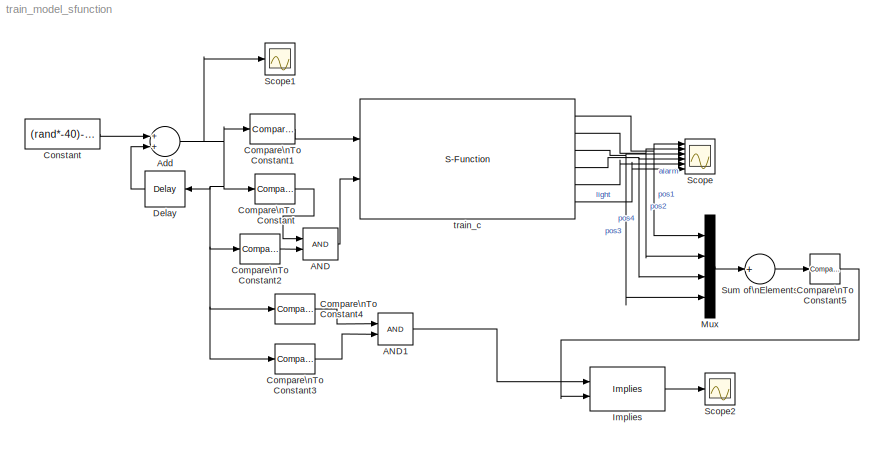
MODEL train_model_sfunction
KIND model
BLOCK [Logic] AND
  AllPortsSameDT = off
  IconShape = distinctive
  OutDataTypeStr = boolean
  Ports = [2, 1]
  SID = 14
BLOCK [Logic] AND1
  AllPortsSameDT = off
  IconShape = distinctive
  OutDataTypeStr = boolean
  Ports = [2, 1]
  SID = 18
BLOCK [Sum] Add
  InputSameDT = off
  OutDataTypeStr = Inherit: Inherit via internal rule
  Ports = [2, 1]
  SID = 8
  SaturateOnIntegerOverflow = off
BLOCK [Reference] Compare\nTo Constant  REF=simulink/Logic and Bit\nOperations/Compare\nTo Constant
  OutDataTypeStr = boolean
  Ports = [1, 1]
  SID = 11
  SourceBlock = simulink/Logic and Bit\nOperations/Compare\nTo Constant
  SourceProductBaseCode = SL
  SourceProductName = Simulink
  SourceType = Compare To Constant
  ZeroCross = on
  const = 2000
  relop = <=
BLOCK [Reference] Compare\nTo Constant1  REF=simulink/Logic and Bit\nOperations/Compare\nTo Constant
  OutDataTypeStr = boolean
  Ports = [1, 1]
  SID = 12
  SourceBlock = simulink/Logic and Bit\nOperations/Compare\nTo Constant
  SourceProductBaseCode = SL
  SourceProductName = Simulink
  SourceType = Compare To Constant
  ZeroCross = on
  const = -1600
  relop = <=
BLOCK [Reference] Compare\nTo Constant2  REF=simulink/Logic and Bit\nOperations/Compare\nTo Constant
  OutDataTypeStr = boolean
  Ports = [1, 1]
  SID = 15
  SourceBlock = simulink/Logic and Bit\nOperations/Compare\nTo Constant
  SourceProductBaseCode = SL
  SourceProductName = Simulink
  SourceType = Compare To Constant
  ZeroCross = on
  const = 1600
  relop = >=
BLOCK [Reference] Compare\nTo Constant3  REF=simulink/Logic and Bit\nOperations/Compare\nTo Constant
  OutDataTypeStr = boolean
  Ports = [1, 1]
  SID = 19
  SourceBlock = simulink/Logic and Bit\nOperations/Compare\nTo Constant
  SourceProductBaseCode = SL
  SourceProductName = Simulink
  SourceType = Compare To Constant
  ZeroCross = on
  const = -1100
  relop = >=
BLOCK [Reference] Compare\nTo Constant4  REF=simulink/Logic and Bit\nOperations/Compare\nTo Constant
  OutDataTypeStr = boolean
  Ports = [1, 1]
  SID = 20
  SourceBlock = simulink/Logic and Bit\nOperations/Compare\nTo Constant
  SourceProductBaseCode = SL
  SourceProductName = Simulink
  SourceType = Compare To Constant
  ZeroCross = on
  const = 500
  relop = <
BLOCK [Reference] Compare\nTo Constant5  REF=simulink/Logic and Bit\nOperations/Compare\nTo Constant
  OutDataTypeStr = boolean
  Ports = [1, 1]
  SID = 23
  SourceBlock = simulink/Logic and Bit\nOperations/Compare\nTo Constant
  SourceProductBaseCode = SL
  SourceProductName = Simulink
  SourceType = Compare To Constant
  ZeroCross = on
  const = 0
  relop = ==
BLOCK [Constant] Constant
  SID = 3
  Value = (rand*-40)-20
BLOCK [Delay] Delay
  DelayLength = 1
  InitialCondition = 2500
  InputPortMap = u0
  Ports = [1, 1]
  SID = 6
  UseCircularBuffer = on
  UserData = DataTag0
  UserDataPersistent = on
BLOCK [Reference] Implies  REF=sldvlib/Verification Utilities/Implies
  Ports = [2, 1]
  SID = 24
  SourceBlock = sldvlib/Verification Utilities/Implies
  SourceProductBaseCode = SL
  SourceProductName = Simulink
  SourceType = Design Verifier Implies
BLOCK [Mux] Mux
  DisplayOption = bar
  Ports = [4, 1]
  SID = 21
BLOCK [Scope] Scope
  Floating = off
  NumInputPorts = 6
  Ports = [6]
  SID = 16
  ScopeSpecificationString = Simulink.scopes.TimeScopeBlockCfg('CurrentConfiguration', extmgr.ConfigurationSet(extmgr.Configuration('Core','General UI',true),extmgr.Configuration('Core','Source UI',true),extmgr.Configuration('Sources','WiredSimulink',true),extmgr.Configuration('Visuals','Time Domain',true,'SerializedDisplays',{struct('MinYLimReal','-11.25','MaxYLimReal','101.25','YLabelReal','','MinYLimMag','0.00000','MaxYLim...<+1534ch>
BLOCK [Scope] Scope1
  Floating = off
  NumInputPorts = 1
  Ports = [1]
  SID = 17
  ScopeSpecificationString = Simulink.scopes.TimeScopeBlockCfg('CurrentConfiguration', extmgr.ConfigurationSet(extmgr.Configuration('Core','General UI',true),extmgr.Configuration('Core','Source UI',true),extmgr.Configuration('Sources','WiredSimulink',true,'DataLoggingVariableName','ScopeData1'),extmgr.Configuration('Visuals','Time Domain',true,'SerializedDisplays',{struct('MinYLimReal','-4190.70065','MaxYLimReal','3199.61671'...<+1384ch>
BLOCK [Scope] Scope2
  Floating = off
  NumInputPorts = 1
  Ports = [1]
  SID = 25
  ScopeSpecificationString = Simulink.scopes.TimeScopeBlockCfg('CurrentConfiguration', extmgr.ConfigurationSet(extmgr.Configuration('Core','General UI',true),extmgr.Configuration('Core','Source UI',true),extmgr.Configuration('Sources','WiredSimulink',true,'DataLoggingVariableName','ScopeData1'),extmgr.Configuration('Visuals','Time Domain',true,'SerializedDisplays',{struct('MinYLimReal','0.9','MaxYLimReal','1.1','YLabelReal','...<+1361ch>
BLOCK [Sum] Sum of\nElements
  InputSameDT = off
  Inputs = +
  OutDataTypeStr = Inherit: Inherit via internal rule
  Ports = [1, 1]
  SID = 22
  SaturateOnIntegerOverflow = off
BLOCK [S-Function] train_c
  CopyFcn = set_param(gcbh,'LinkStatus','none')
  EnableBusSupport = off
  FunctionName = train_control
  InitFcn = try, set_param(gcb,'FunctionName','train_control'), end
  OpenFcn = sfunctionwizard(gcbh)
  Ports = [2, 6]
  PreSaveFcn = try, set_param(gcb,'FunctionName','train_control'), end
  SFcnIsStateOwnerBlock = off
  SFunctionDeploymentMode = off
  SFunctionModules = train_control_wrapper
  SID = 2
  WizardData = DataTag1
LINE AND1:1 -> Implies:1
LINE AND:1 -> train_c:2
NET Add:1 -> Compare\nTo Constant1:1, Compare\nTo Constant2:1, Compare\nTo Constant3:1, Compare\nTo Constant4:1, Compare\nTo Constant:1, Delay:1, Scope1:1
LINE Compare\nTo Constant1:1 -> train_c:1
LINE Compare\nTo Constant2:1 -> AND:2
LINE Compare\nTo Constant3:1 -> AND1:2
LINE Compare\nTo Constant4:1 -> AND1:1
LINE Compare\nTo Constant5:1 -> Implies:2
LINE Compare\nTo Constant:1 -> AND:1
LINE Constant:1 -> Add:1
LINE Delay:1 -> Add:2
LINE Implies:1 -> Scope2:1
LINE Mux:1 -> Sum of\nElements:1
LINE Sum of\nElements:1 -> Compare\nTo Constant5:1
NET train_c:1 -> Mux:1, Scope:1
NET train_c:2 -> Mux:2, Scope:2
NET train_c:3 -> Mux:4, Scope:3
NET train_c:4 -> Mux:3, Scope:4
LINE train_c:5 -> Scope:5
LINE train_c:6 -> Scope:6
note: NET lines group one-source signal fan-out (src -> all destinations, sorted); 1:1 wires keep LINE
